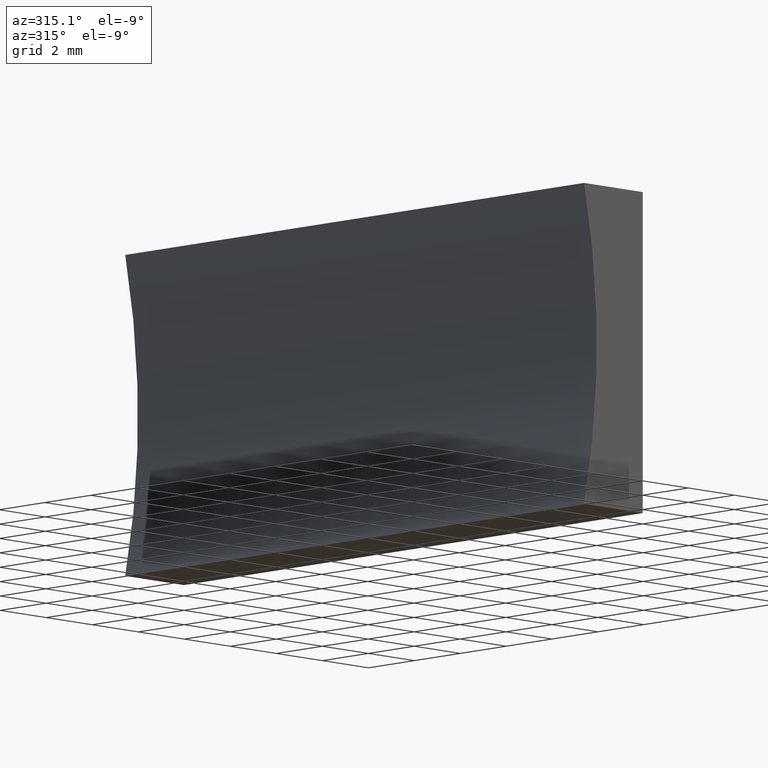
[diagram: clean part render]
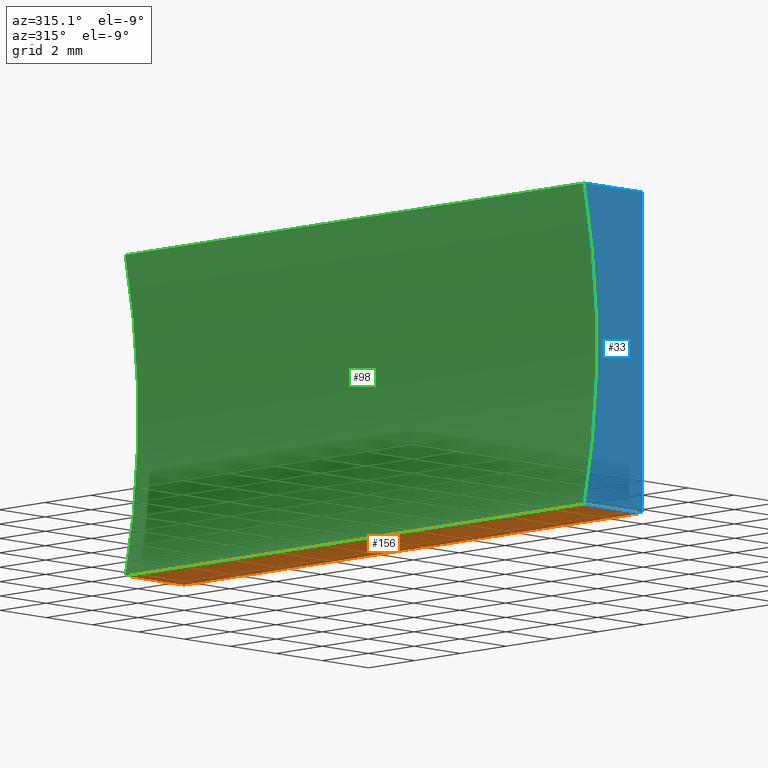
[diagram: same view with three faces highlighted in distinct colors, each labeled with its STEP entity id]
A machine part, auxiliary view with three faces highlighted in distinct colors.
Their STEP definitions:

[orange] entity #156 — the highlighted planar face has unit normal (-0, 0, 1).
#3 = DIRECTION ( 'NONE',  ( 1.000000000000000000, 0.0000000000000000000, 6.797444814751702500E-016 ) ) ;
#12 = VERTEX_POINT ( 'NONE', #91 ) ;
#29 = DIRECTION ( 'NONE',  ( -0.0000000000000000000, -1.000000000000000000, -0.0000000000000000000 ) ) ;
#31 = ORIENTED_EDGE ( 'NONE', *, *, #109, .T. ) ;
#35 = VERTEX_POINT ( 'NONE', #72 ) ;
#38 = ORIENTED_EDGE ( 'NONE', *, *, #85, .T. ) ;
#40 = EDGE_CURVE ( 'NONE', #35, #81, #70, .T. ) ;
#41 = FACE_OUTER_BOUND ( 'NONE', #66, .T. ) ;
#49 = VECTOR ( 'NONE', #149, 1000.000000000000000 ) ;
#63 = CARTESIAN_POINT ( 'NONE',  ( 0.0000000000000000000, 20.00000000000000000, 0.0000000000000000000 ) ) ;
#66 = EDGE_LOOP ( 'NONE', ( #31, #124, #141, #38 ) ) ;
#70 = LINE ( 'NONE', #122, #172 ) ;
#72 = CARTESIAN_POINT ( 'NONE',  ( -2.552022889854344000, 20.00000000000000000, -4.336808689942017700E-015 ) ) ;
#81 = VERTEX_POINT ( 'NONE', #173 ) ;
#84 = VECTOR ( 'NONE', #29, 1000.000000000000000 ) ;
#85 = EDGE_CURVE ( 'NONE', #12, #178, #195, .T. ) ;
#87 = CARTESIAN_POINT ( 'NONE',  ( 0.0000000000000000000, 0.0000000000000000000, 0.0000000000000000000 ) ) ;
#91 = CARTESIAN_POINT ( 'NONE',  ( 0.0000000000000000000, 20.00000000000000000, 0.0000000000000000000 ) ) ;
#92 = CARTESIAN_POINT ( 'NONE',  ( 0.0000000000000000000, 20.00000000000000000, 0.0000000000000000000 ) ) ;
#97 = CARTESIAN_POINT ( 'NONE',  ( 0.0000000000000000000, 20.00000000000000000, 0.0000000000000000000 ) ) ;
#109 = EDGE_CURVE ( 'NONE', #178, #81, #164, .T. ) ;
#110 = DIRECTION ( 'NONE',  ( -6.797444814751702500E-016, 0.0000000000000000000, 1.000000000000000000 ) ) ;
#117 = CARTESIAN_POINT ( 'NONE',  ( 0.0000000000000000000, 0.0000000000000000000, 0.0000000000000000000 ) ) ;
#122 = CARTESIAN_POINT ( 'NONE',  ( -2.552022889854344000, 20.00000000000000000, -4.336808689942017700E-015 ) ) ;
#124 = ORIENTED_EDGE ( 'NONE', *, *, #40, .F. ) ;
#130 = LINE ( 'NONE', #63, #49 ) ;
#141 = ORIENTED_EDGE ( 'NONE', *, *, #185, .F. ) ;
#144 = DIRECTION ( 'NONE',  ( -0.0000000000000000000, -1.000000000000000000, -0.0000000000000000000 ) ) ;
#149 = DIRECTION ( 'NONE',  ( -1.000000000000000000, 0.0000000000000000000, -6.797444814751702500E-016 ) ) ;
#156 = ADVANCED_FACE ( 'NONE', ( #41 ), #159, .F. ) ;
#159 = PLANE ( 'NONE',  #191 ) ;
#164 = LINE ( 'NONE', #117, #196 ) ;
#172 = VECTOR ( 'NONE', #144, 1000.000000000000000 ) ;
#173 = CARTESIAN_POINT ( 'NONE',  ( -2.552022889854344000, 0.0000000000000000000, -4.336808689942017700E-015 ) ) ;
#178 = VERTEX_POINT ( 'NONE', #87 ) ;
#185 = EDGE_CURVE ( 'NONE', #12, #35, #130, .T. ) ;
#191 = AXIS2_PLACEMENT_3D ( 'NONE', #92, #110, #3 ) ;
#195 = LINE ( 'NONE', #97, #84 ) ;
#196 = VECTOR ( 'NONE', #199, 1000.000000000000000 ) ;
#199 = DIRECTION ( 'NONE',  ( -1.000000000000000000, 0.0000000000000000000, -6.797444814751702500E-016 ) ) ;

[blue] entity #33 — the highlighted planar face has unit normal (0, 1, 0).
#2 = EDGE_CURVE ( 'NONE', #81, #24, #77, .T. ) ;
#10 = DIRECTION ( 'NONE',  ( -0.0000000000000000000, -1.000000000000000000, -0.0000000000000000000 ) ) ;
#17 = ORIENTED_EDGE ( 'NONE', *, *, #121, .F. ) ;
#18 = AXIS2_PLACEMENT_3D ( 'NONE', #55, #175, #69 ) ;
#24 = VERTEX_POINT ( 'NONE', #86 ) ;
#33 = ADVANCED_FACE ( 'NONE', ( #161 ), #179, .F. ) ;
#43 = ORIENTED_EDGE ( 'NONE', *, *, #2, .F. ) ;
#45 = EDGE_LOOP ( 'NONE', ( #190, #17, #187, #43 ) ) ;
#47 = CARTESIAN_POINT ( 'NONE',  ( 6.123233995736766300E-016, 0.0000000000000000000, 10.00000000000000000 ) ) ;
#55 = CARTESIAN_POINT ( 'NONE',  ( -24.92000000000000200, 0.0000000000000000000, 5.000000000000003600 ) ) ;
#60 = DIRECTION ( 'NONE',  ( 0.0000000000000000000, 0.0000000000000000000, 1.000000000000000000 ) ) ;
#67 = LINE ( 'NONE', #125, #118 ) ;
#69 = DIRECTION ( 'NONE',  ( 0.0000000000000000000, -0.0000000000000000000, 1.000000000000000000 ) ) ;
#73 = EDGE_CURVE ( 'NONE', #24, #184, #155, .T. ) ;
#77 = CIRCLE ( 'NONE', #131, 22.92000000000000200 ) ;
#80 = DIRECTION ( 'NONE',  ( 1.000000000000000000, -0.0000000000000000000, -6.797444814751704400E-016 ) ) ;
#81 = VERTEX_POINT ( 'NONE', #173 ) ;
#86 = CARTESIAN_POINT ( 'NONE',  ( -2.552022889854343600, 0.0000000000000000000, 10.00000000000000200 ) ) ;
#87 = CARTESIAN_POINT ( 'NONE',  ( 0.0000000000000000000, 0.0000000000000000000, 0.0000000000000000000 ) ) ;
#88 = CARTESIAN_POINT ( 'NONE',  ( -24.92000000000000200, 0.0000000000000000000, 5.000000000000003600 ) ) ;
#109 = EDGE_CURVE ( 'NONE', #178, #81, #164, .T. ) ;
#117 = CARTESIAN_POINT ( 'NONE',  ( 0.0000000000000000000, 0.0000000000000000000, 0.0000000000000000000 ) ) ;
#118 = VECTOR ( 'NONE', #200, 1000.000000000000000 ) ;
#120 = CARTESIAN_POINT ( 'NONE',  ( 6.123233995736766300E-016, 0.0000000000000000000, 10.00000000000000000 ) ) ;
#121 = EDGE_CURVE ( 'NONE', #184, #178, #67, .T. ) ;
#125 = CARTESIAN_POINT ( 'NONE',  ( 0.0000000000000000000, 0.0000000000000000000, 0.0000000000000000000 ) ) ;
#131 = AXIS2_PLACEMENT_3D ( 'NONE', #88, #10, #60 ) ;
#136 = VECTOR ( 'NONE', #80, 1000.000000000000000 ) ;
#155 = LINE ( 'NONE', #120, #136 ) ;
#161 = FACE_OUTER_BOUND ( 'NONE', #45, .T. ) ;
#164 = LINE ( 'NONE', #117, #196 ) ;
#173 = CARTESIAN_POINT ( 'NONE',  ( -2.552022889854344000, 0.0000000000000000000, -4.336808689942017700E-015 ) ) ;
#175 = DIRECTION ( 'NONE',  ( 0.0000000000000000000, 1.000000000000000000, 0.0000000000000000000 ) ) ;
#178 = VERTEX_POINT ( 'NONE', #87 ) ;
#179 = PLANE ( 'NONE',  #18 ) ;
#184 = VERTEX_POINT ( 'NONE', #47 ) ;
#187 = ORIENTED_EDGE ( 'NONE', *, *, #73, .F. ) ;
#190 = ORIENTED_EDGE ( 'NONE', *, *, #109, .F. ) ;
#196 = VECTOR ( 'NONE', #199, 1000.000000000000000 ) ;
#199 = DIRECTION ( 'NONE',  ( -1.000000000000000000, 0.0000000000000000000, -6.797444814751702500E-016 ) ) ;
#200 = DIRECTION ( 'NONE',  ( -6.123233995736766000E-017, -0.0000000000000000000, -1.000000000000000000 ) ) ;

[green] entity #98 — the highlighted cylindrical surface (partial cylindrical patch) has radius 22.92 mm, axis along (-0, -1, -0).
#2 = EDGE_CURVE ( 'NONE', #81, #24, #77, .T. ) ;
#4 = EDGE_CURVE ( 'NONE', #35, #75, #27, .T. ) ;
#10 = DIRECTION ( 'NONE',  ( -0.0000000000000000000, -1.000000000000000000, -0.0000000000000000000 ) ) ;
#24 = VERTEX_POINT ( 'NONE', #86 ) ;
#27 = CIRCLE ( 'NONE', #147, 22.92000000000000200 ) ;
#32 = DIRECTION ( 'NONE',  ( -0.0000000000000000000, -1.000000000000000000, -0.0000000000000000000 ) ) ;
#35 = VERTEX_POINT ( 'NONE', #72 ) ;
#40 = EDGE_CURVE ( 'NONE', #35, #81, #70, .T. ) ;
#50 = ORIENTED_EDGE ( 'NONE', *, *, #4, .F. ) ;
#51 = CARTESIAN_POINT ( 'NONE',  ( -24.92000000000000200, 20.00000000000000000, 5.000000000000003600 ) ) ;
#56 = EDGE_LOOP ( 'NONE', ( #100, #78, #50, #108 ) ) ;
#58 = AXIS2_PLACEMENT_3D ( 'NONE', #51, #180, #123 ) ;
#60 = DIRECTION ( 'NONE',  ( 0.0000000000000000000, 0.0000000000000000000, 1.000000000000000000 ) ) ;
#70 = LINE ( 'NONE', #122, #172 ) ;
#72 = CARTESIAN_POINT ( 'NONE',  ( -2.552022889854344000, 20.00000000000000000, -4.336808689942017700E-015 ) ) ;
#75 = VERTEX_POINT ( 'NONE', #167 ) ;
#77 = CIRCLE ( 'NONE', #131, 22.92000000000000200 ) ;
#78 = ORIENTED_EDGE ( 'NONE', *, *, #104, .F. ) ;
#81 = VERTEX_POINT ( 'NONE', #173 ) ;
#82 = CARTESIAN_POINT ( 'NONE',  ( -24.92000000000000200, 20.00000000000000000, 5.000000000000003600 ) ) ;
#86 = CARTESIAN_POINT ( 'NONE',  ( -2.552022889854343600, 0.0000000000000000000, 10.00000000000000200 ) ) ;
#88 = CARTESIAN_POINT ( 'NONE',  ( -24.92000000000000200, 0.0000000000000000000, 5.000000000000003600 ) ) ;
#95 = FACE_OUTER_BOUND ( 'NONE', #56, .T. ) ;
#98 = ADVANCED_FACE ( 'NONE', ( #95 ), #160, .F. ) ;
#100 = ORIENTED_EDGE ( 'NONE', *, *, #2, .T. ) ;
#104 = EDGE_CURVE ( 'NONE', #75, #24, #126, .T. ) ;
#108 = ORIENTED_EDGE ( 'NONE', *, *, #40, .T. ) ;
#113 = CARTESIAN_POINT ( 'NONE',  ( -2.552022889854343600, 20.00000000000000000, 10.00000000000000200 ) ) ;
#122 = CARTESIAN_POINT ( 'NONE',  ( -2.552022889854344000, 20.00000000000000000, -4.336808689942017700E-015 ) ) ;
#123 = DIRECTION ( 'NONE',  ( 0.0000000000000000000, 0.0000000000000000000, -1.000000000000000000 ) ) ;
#126 = LINE ( 'NONE', #113, #158 ) ;
#127 = DIRECTION ( 'NONE',  ( 0.0000000000000000000, 0.0000000000000000000, 1.000000000000000000 ) ) ;
#131 = AXIS2_PLACEMENT_3D ( 'NONE', #88, #10, #60 ) ;
#144 = DIRECTION ( 'NONE',  ( -0.0000000000000000000, -1.000000000000000000, -0.0000000000000000000 ) ) ;
#147 = AXIS2_PLACEMENT_3D ( 'NONE', #82, #32, #127 ) ;
#158 = VECTOR ( 'NONE', #181, 1000.000000000000000 ) ;
#160 = CYLINDRICAL_SURFACE ( 'NONE', #58, 22.92000000000000200 ) ;
#167 = CARTESIAN_POINT ( 'NONE',  ( -2.552022889854343600, 20.00000000000000000, 10.00000000000000200 ) ) ;
#172 = VECTOR ( 'NONE', #144, 1000.000000000000000 ) ;
#173 = CARTESIAN_POINT ( 'NONE',  ( -2.552022889854344000, 0.0000000000000000000, -4.336808689942017700E-015 ) ) ;
#180 = DIRECTION ( 'NONE',  ( -0.0000000000000000000, -1.000000000000000000, -0.0000000000000000000 ) ) ;
#181 = DIRECTION ( 'NONE',  ( -0.0000000000000000000, -1.000000000000000000, -0.0000000000000000000 ) ) ;